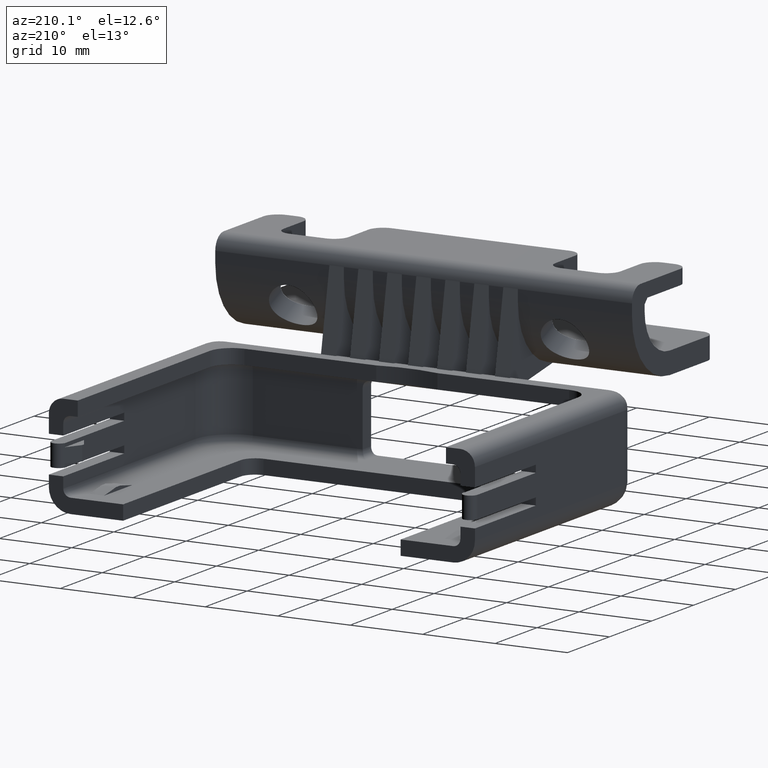
[diagram: clean part render]
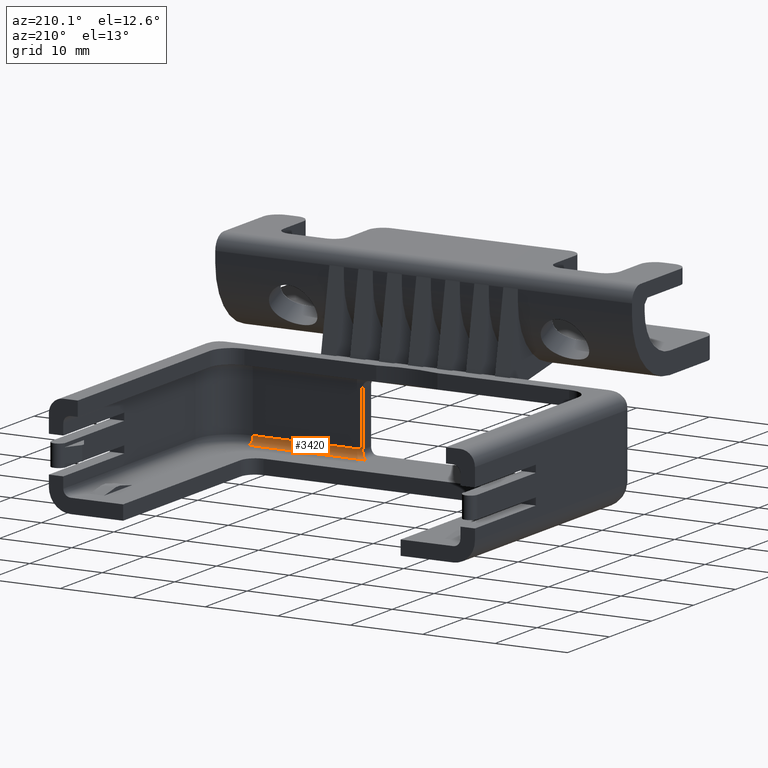
[diagram: same view with one face highlighted and labeled with its STEP entity id]
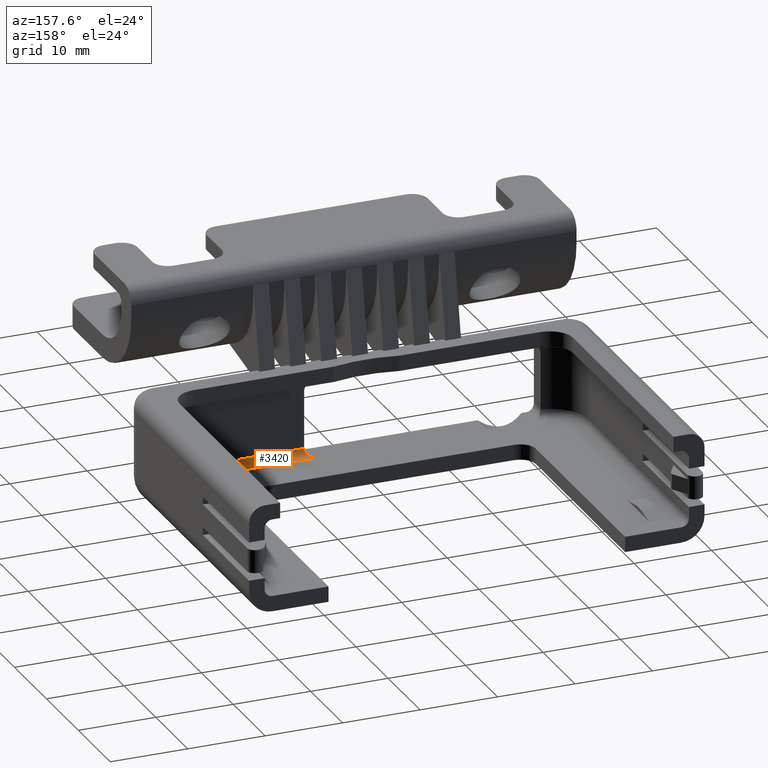
[diagram: same view with one face highlighted and labeled with its STEP entity id]
A machine part, auxiliary view. The second image highlights one B-rep face of the part: STEP entity #3420.
A second angle (auxiliary view) of the same face is appended — the face is thin or edge-on in the first view.
In plain terms, the highlighted cylindrical surface (edge-blend (fillet) strip) has radius 1 mm, axis along (1, 0, 0).
Its self-contained STEP definition (entity closure, byte-faithful):
#554=ELLIPSE('',#3597,0.14142135623731,0.1);
#601=CIRCLE('',#3630,0.1);
#691=CYLINDRICAL_SURFACE('',#3629,0.1);
#779=VERTEX_POINT('',#4793);
#780=VERTEX_POINT('',#4794);
#783=VERTEX_POINT('',#4835);
#827=VERTEX_POINT('',#5202);
#1074=VECTOR('',#3948,1.);
#1110=VECTOR('',#4038,1.);
#1367=LINE('',#4834,#1074);
#1403=LINE('',#5201,#1110);
#1676=EDGE_CURVE('',#779,#780,#554,.T.);
#1680=EDGE_CURVE('',#783,#780,#1367,.T.);
#1744=EDGE_CURVE('',#779,#827,#1403,.T.);
#1745=EDGE_CURVE('',#783,#827,#601,.T.);
#2285=ORIENTED_EDGE('',*,*,#1680,.T.);
#2286=ORIENTED_EDGE('',*,*,#1676,.F.);
#2287=ORIENTED_EDGE('',*,*,#1744,.T.);
#2288=ORIENTED_EDGE('',*,*,#1745,.F.);
#3050=EDGE_LOOP('',(#2285,#2286,#2287,#2288));
#3236=FACE_BOUND('',#3050,.T.);
#3420=ADVANCED_FACE('',(#3236),#691,.F.);
#3597=AXIS2_PLACEMENT_3D('',#4792,#3943,#3944);
#3629=AXIS2_PLACEMENT_3D('',#5200,#4036,#4037);
#3630=AXIS2_PLACEMENT_3D('',#5203,#4039,#4040);
#3943=DIRECTION('',(0.707106781186548,0.707106781186548,0.));
#3944=DIRECTION('',(0.1,-0.1,0.));
#3948=DIRECTION('',(-1.,0.,0.));
#4036=DIRECTION('',(1.,0.,0.));
#4037=DIRECTION('',(0.,-0.0707106781186548,-0.0707106781186548));
#4038=DIRECTION('',(1.,0.,0.));
#4039=DIRECTION('',(-1.,-6.93889390390723E-017,0.));
#4040=DIRECTION('',(0.,0.,-0.1));
#4792=CARTESIAN_POINT('',(0.625,-1.625,0.3));
#4793=CARTESIAN_POINT('',(0.725,-1.725,0.3));
#4794=CARTESIAN_POINT('',(0.625,-1.625,0.2));
#4834=CARTESIAN_POINT('',(2.43973143410106E-017,-1.625,0.2));
#4835=CARTESIAN_POINT('',(2.24,-1.625,0.2));
#5200=CARTESIAN_POINT('',(2.43973143410106E-017,-1.625,0.3));
#5201=CARTESIAN_POINT('',(2.43973143410106E-017,-1.725,0.3));
#5202=CARTESIAN_POINT('',(2.24,-1.725,0.3));
#5203=CARTESIAN_POINT('',(2.24,-1.625,0.3));